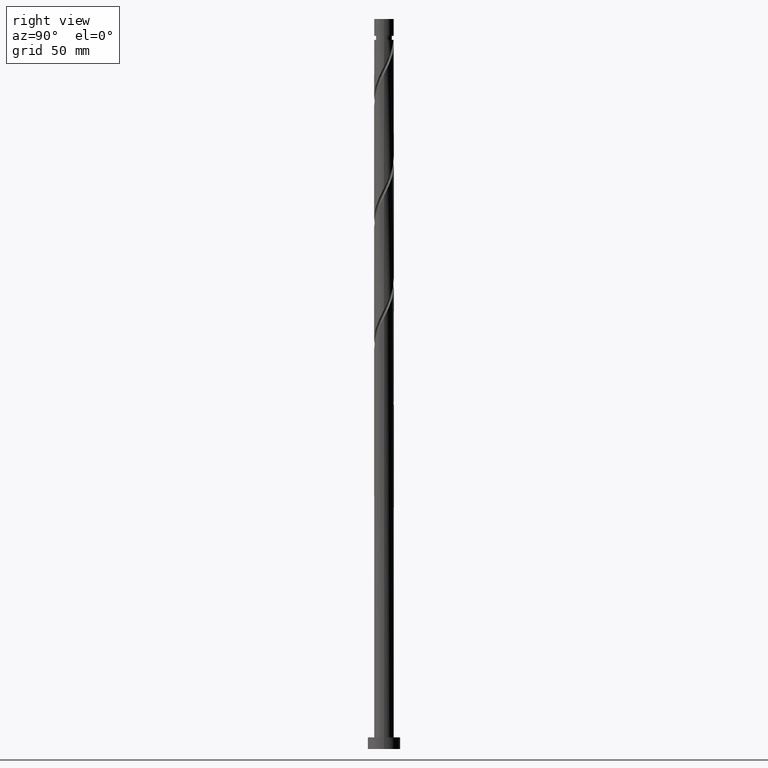
[diagram: clean part render]
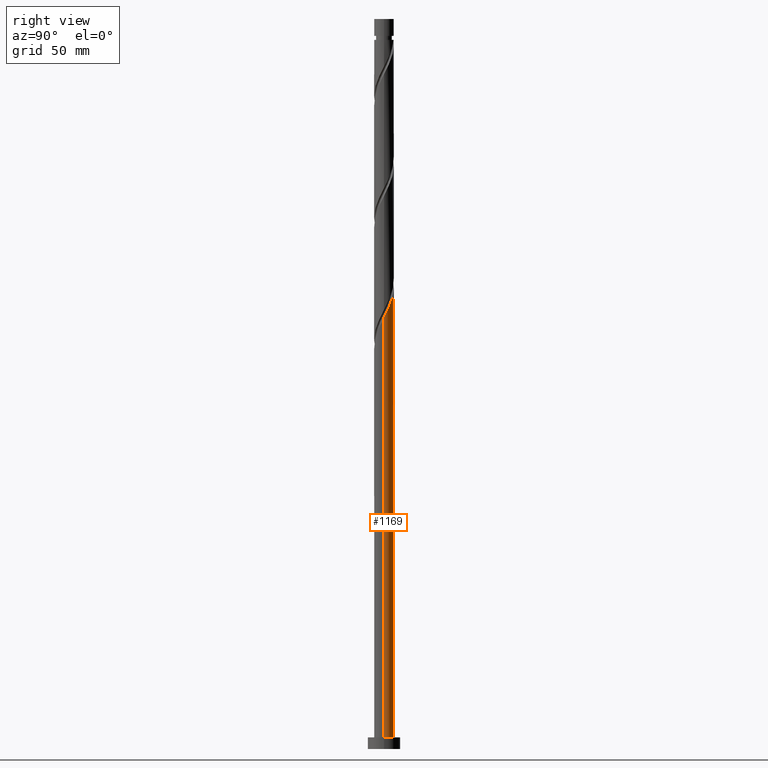
[diagram: same view with one face highlighted and labeled with its STEP entity id]
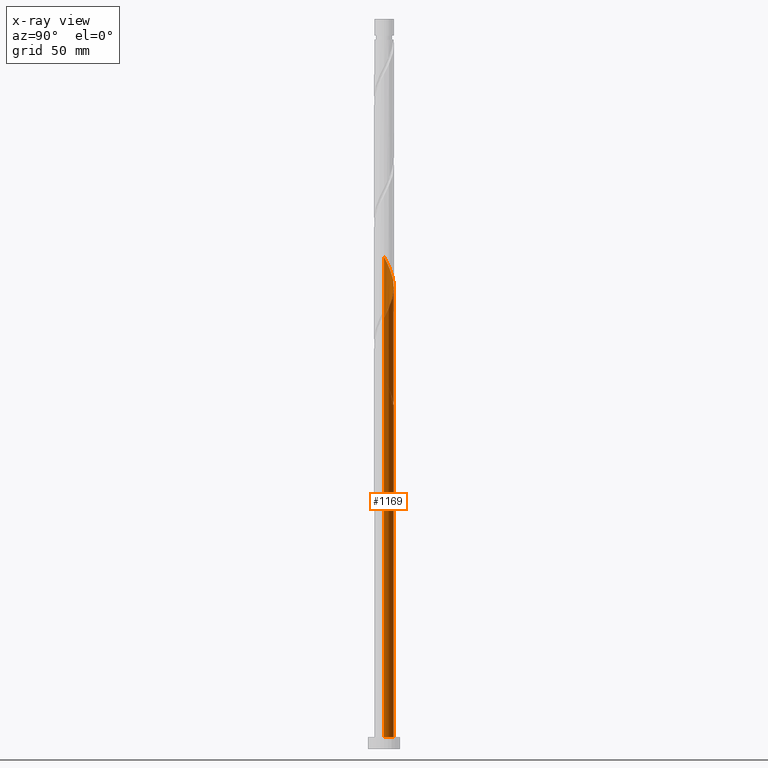
[diagram: x-ray of the same camera — body ghosted, the highlighted face saturated]
A machine part, right view. The second image highlights one B-rep face of the part: STEP entity #1169.
The next image is the same camera in x-ray: the body ghosted, the highlighted face saturated — about 0% of this face is hidden behind the body in this view.
In plain terms, the highlighted cylindrical surface (edge-blend (fillet) strip) has radius 4.25 mm, axis along (-0, -0, -1).
Its self-contained STEP definition (entity closure, byte-faithful):
#58 = ORIENTED_EDGE ( 'NONE', *, *, #790, .F. ) ;
#64 = CARTESIAN_POINT ( 'NONE',  ( 3.385582795664786815, 2.569110572493653599, 191.6187838819314493 ) ) ;
#71 = DIRECTION ( 'NONE',  ( -0.000000000000000000, -0.000000000000000000, -1.000000000000000000 ) ) ;
#73 = CARTESIAN_POINT ( 'NONE',  ( -3.565547165210049663, 2.361923010402215528, 207.5562838819315061 ) ) ;
#83 = CARTESIAN_POINT ( 'NONE',  ( 3.675052036796103483, 2.187647005630865671, 190.6812838819315630 ) ) ;
#92 = CARTESIAN_POINT ( 'NONE',  ( 1.045140974355611485, 4.119487873962377478, 197.2437838819314777 ) ) ;
#102 = CARTESIAN_POINT ( 'NONE',  ( -2.950574139356442860, 3.096113554533469259, 205.6812838819315346 ) ) ;
#117 = CARTESIAN_POINT ( 'NONE',  ( -4.237246980153090981, 0.5809861647134119123, 158.8062838819315061 ) ) ;
#118 =( BOUNDED_CURVE ( )  B_SPLINE_CURVE ( 2, ( #671, #1400, #680, #1409, #836, #83, #64, #985, #406, #1730, #525, #1097, #92, #826, #1551, #377, #1579, #367, #1422, #1275, #1430, #102, #548, #73, #662, #515, #727, #718, #432, #1442, #1748 ),
 .UNSPECIFIED., .F., .T. ) 
 B_SPLINE_CURVE_WITH_KNOTS ( ( 3, 2, 2, 2, 2, 2, 2, 2, 2, 2, 2, 2, 2, 2, 2, 3 ),
 ( 0.1795303401299219725, 0.1875000000000000000, 0.1964285714285713969, 0.2053571428571429047, 0.2142857142857143016, 0.2232142857142856984, 0.2321428571428570953, 0.2410714285714286031, 0.2500000000000000000, 0.2589285714285713969, 0.2678571428571429047, 0.2767857142857143016, 0.2857142857142856984, 0.2946428571428570953, 0.3035714285714286031, 0.3045303401299225277 ),
 .UNSPECIFIED. ) 
 CURVE ( )  GEOMETRIC_REPRESENTATION_ITEM ( )  RATIONAL_B_SPLINE_CURVE ( ( 0.9079949616362108511, 0.9039886423360736778, 0.9090909090909405910, 0.9033747362666154634, 0.9090909090909405910, 0.9033747362666154634, 0.9090909090909405910, 0.9033747362666154634, 0.9090909090909405910, 0.9033747362666154634, 0.9090909090909405910, 0.9033747362666154634, 0.9090909090909405910, 0.9033747362666154634, 0.9090909090909405910, 0.9033747362666154634, 0.9090909090909405910, 0.9033747362666154634, 0.9090909090909405910, 0.9033747362666154634, 0.9090909090909405910, 0.9033747362666154634, 0.9090909090909405910, 0.9033747362666154634, 0.9090909090909405910, 0.9033747362666154634, 0.9090909090909405910, 0.9033747362666154634, 0.9090909090909405910, 0.9084770030214821546, 0.9079949616362102960 ) ) 
 REPRESENTATION_ITEM ( '' )  );
#123 = CARTESIAN_POINT ( 'NONE',  ( -1.509295783997806506, 4.001728767771656869, 153.1812838819315061 ) ) ;
#132 = DIRECTION ( 'NONE',  ( 0.000000000000000000, 0.000000000000000000, 1.000000000000000000 ) ) ;
#156 = ORIENTED_EDGE ( 'NONE', *, *, #1770, .T. ) ;
#169 = DIRECTION ( 'NONE',  ( 1.000000000000000000, 0.000000000000000000, 0.000000000000000000 ) ) ;
#225 = EDGE_CURVE ( 'NONE', #504, #1652, #1700, .T. ) ;
#228 = CARTESIAN_POINT ( 'NONE',  ( -3.258060652283245151, 2.729018282467841949, 154.1187838819314777 ) ) ;
#234 = DIRECTION ( 'NONE',  ( -0.000000000000000000, -0.000000000000000000, -1.000000000000000000 ) ) ;
#236 = CARTESIAN_POINT ( 'NONE',  ( -4.250000000000007105, 0.05113981295718089681, 159.8439041158002851 ) ) ;
#254 = CARTESIAN_POINT ( 'NONE',  ( 0.8457393215406304732, 4.164999999999997371, 148.4937838819314777 ) ) ;
#256 = CARTESIAN_POINT ( 'NONE',  ( -4.250000000000007105, -1.308244049161757699E-14, 212.4442668040255171 ) ) ;
#260 = CARTESIAN_POINT ( 'NONE',  ( -4.250000000000000000, 0.000000000000000000, 5.000000000000000000 ) ) ;
#262 = CARTESIAN_POINT ( 'NONE',  ( -4.119487873962377478, 1.045140974355610819, 157.8687838819314777 ) ) ;
#268 = CARTESIAN_POINT ( 'NONE',  ( -3.872380050524492301, 1.751334560927727102, 159.7437838819315061 ) ) ;
#279 = CARTESIAN_POINT ( 'NONE',  ( 0.000000000000000000, 0.000000000000000000, 315.0000000000000000 ) ) ;
#284 = CARTESIAN_POINT ( 'NONE',  ( -3.675052036796095045, 2.187647005630862118, 158.8062838819314777 ) ) ;
#296 = AXIS2_PLACEMENT_3D ( 'NONE', #895, #1010, #1159 ) ;
#300 = DIRECTION ( 'NONE',  ( -0.000000000000000000, -0.000000000000000000, -1.000000000000000000 ) ) ;
#324 = VERTEX_POINT ( 'NONE', #256 ) ;
#365 = VERTEX_POINT ( 'NONE', #983 ) ;
#367 = CARTESIAN_POINT ( 'NONE',  ( -1.315022116224593418, 4.069708064252899327, 201.9312838819314493 ) ) ;
#377 = CARTESIAN_POINT ( 'NONE',  ( -0.3764565268566660294, 4.260291935747114955, 200.0562838819315346 ) ) ;
#406 = CARTESIAN_POINT ( 'NONE',  ( 2.729018282467842393, 3.258060652283245151, 193.4937838819315061 ) ) ;
#427 = CARTESIAN_POINT ( 'NONE',  ( 0.3764565268566672507, 4.260291935747106074, 149.4312838819314777 ) ) ;
#429 = ORIENTED_EDGE ( 'NONE', *, *, #1914, .F. ) ;
#432 = CARTESIAN_POINT ( 'NONE',  ( -4.248769457950102968, 0.1022648189283724418, 212.2437838819315061 ) ) ;
#444 = CARTESIAN_POINT ( 'NONE',  ( -1.045140974355608154, 4.119487873962370372, 152.2437838819315061 ) ) ;
#504 = VERTEX_POINT ( 'NONE', #746 ) ;
#515 = CARTESIAN_POINT ( 'NONE',  ( -4.001728767771663087, 1.509295783997810059, 209.4312838819315346 ) ) ;
#522 = CARTESIAN_POINT ( 'NONE',  ( -1.751334560927729544, 3.872380050524500295, 150.3687838819314777 ) ) ;
#525 = CARTESIAN_POINT ( 'NONE',  ( 1.935609397200013237, 3.783637966490855931, 195.3687838819315061 ) ) ;
#530 = DIRECTION ( 'NONE',  ( -0.000000000000000000, -0.000000000000000000, -1.000000000000000000 ) ) ;
#543 = CARTESIAN_POINT ( 'NONE',  ( -4.001728767771663087, 1.509295783997810059, 156.9312838819315061 ) ) ;
#548 = CARTESIAN_POINT ( 'NONE',  ( -3.258060652283245151, 2.729018282467841949, 206.6187838819315061 ) ) ;
#562 = ORIENTED_EDGE ( 'NONE', *, *, #1832, .F. ) ;
#608 = VECTOR ( 'NONE', #530, 1000.000000000000000 ) ;
#662 = CARTESIAN_POINT ( 'NONE',  ( -3.783637966490855931, 1.935609397200012571, 208.4937838819315061 ) ) ;
#668 = CARTESIAN_POINT ( 'NONE',  ( -3.783637966490855931, 1.935609397200012571, 155.9937838819314777 ) ) ;
#671 = CARTESIAN_POINT ( 'NONE',  ( 4.250000000000006217, 6.194196011433306111E-16, 186.1942668040253750 ) ) ;
#680 = CARTESIAN_POINT ( 'NONE',  ( 4.165000000000006253, 0.8457393215406295850, 187.8687838819315061 ) ) ;
#703 = CARTESIAN_POINT ( 'NONE',  ( -1.935609397200007686, 3.783637966490849713, 154.1187838819314493 ) ) ;
#718 = CARTESIAN_POINT ( 'NONE',  ( -4.237246980153090981, 0.5809861647134119123, 211.3062838819315914 ) ) ;
#727 = CARTESIAN_POINT ( 'NONE',  ( -4.119487873962377478, 1.045140974355610819, 210.3687838819314777 ) ) ;
#744 = DIRECTION ( 'NONE',  ( -1.000000000000000000, 0.000000000000000000, 0.000000000000000000 ) ) ;
#746 = CARTESIAN_POINT ( 'NONE',  ( 4.250000000000006217, 6.194196011433306111E-16, 186.1942668040253750 ) ) ;
#790 = EDGE_CURVE ( 'NONE', #1852, #1085, #986, .T. ) ;
#819 = LINE ( 'NONE', #1871, #608 ) ;
#826 = CARTESIAN_POINT ( 'NONE',  ( 0.5809861647134128004, 4.237246980153090981, 198.1812838819315061 ) ) ;
#836 = CARTESIAN_POINT ( 'NONE',  ( 3.872380050524500295, 1.751334560927728878, 189.7437838819314777 ) ) ;
#859 = CARTESIAN_POINT ( 'NONE',  ( -2.361923010402210199, 3.565547165210043445, 155.0562838819314777 ) ) ;
#868 = CARTESIAN_POINT ( 'NONE',  ( -4.249999999999999112, -9.365922884757672994E-15, 163.2933009598375520 ) ) ;
#877 = CARTESIAN_POINT ( 'NONE',  ( 0.8457393215406304732, 4.164999999999997371, 148.4937838819314777 ) ) ;
#895 = CARTESIAN_POINT ( 'NONE',  ( 0.000000000000000000, 0.000000000000000000, 148.4937838819314777 ) ) ;
#913 = AXIS2_PLACEMENT_3D ( 'NONE', #1046, #132, #169 ) ;
#968 = CARTESIAN_POINT ( 'NONE',  ( -4.250000000000000000, 0.000000000000000000, 315.0000000000000000 ) ) ;
#983 = CARTESIAN_POINT ( 'NONE',  ( -4.249999999999999112, -9.365922884757672994E-15, 163.2933009598375520 ) ) ;
#985 = CARTESIAN_POINT ( 'NONE',  ( 3.096113554533469703, 2.950574139356442416, 192.5562838819314777 ) ) ;
#986 =( BOUNDED_CURVE ( )  B_SPLINE_CURVE ( 2, ( #1449, #1114, #522, #1439, #1427, #1135, #228, #1718, #668, #543, #262, #117, #1293, #236, #1736 ),
 .UNSPECIFIED., .F., .T. ) 
 B_SPLINE_CURVE_WITH_KNOTS ( ( 3, 2, 2, 2, 2, 2, 2, 3 ),
 ( 0.000000000000000000, 0.008928571428571396851, 0.01785714285714290472, 0.02678571428571430157, 0.03571428571428569843, 0.04464285714285709528, 0.05357142857142860315, 0.05453034012992166030 ),
 .UNSPECIFIED. ) 
 CURVE ( )  GEOMETRIC_REPRESENTATION_ITEM ( )  RATIONAL_B_SPLINE_CURVE ( ( 0.9090909090909405910, 0.9033747362666154634, 0.9090909090909405910, 0.9033747362666154634, 0.9090909090909405910, 0.9033747362666154634, 0.9090909090909405910, 0.9033747362666154634, 0.9090909090909405910, 0.9033747362666154634, 0.9090909090909405910, 0.9033747362666154634, 0.9090909090909405910, 0.9084770030214825987, 0.9079949616362110731 ) ) 
 REPRESENTATION_ITEM ( '' )  );
#992 = EDGE_LOOP ( 'NONE', ( #429, #1630, #1077, #1827, #58, #156, #562, #1111 ) ) ;
#1010 = DIRECTION ( 'NONE',  ( 0.000000000000000000, -0.000000000000000000, -1.000000000000000000 ) ) ;
#1028 = CARTESIAN_POINT ( 'NONE',  ( -0.1022648189283712067, 4.248769457950094974, 150.3687838819314777 ) ) ;
#1038 = FACE_OUTER_BOUND ( 'NONE', #992, .T. ) ;
#1046 = CARTESIAN_POINT ( 'NONE',  ( 0.000000000000000000, 0.000000000000000000, 5.000000000000000000 ) ) ;
#1050 = EDGE_CURVE ( 'NONE', #1652, #1587, #1258, .T. ) ;
#1077 = ORIENTED_EDGE ( 'NONE', *, *, #1050, .T. ) ;
#1085 = VERTEX_POINT ( 'NONE', #1332 ) ;
#1097 = CARTESIAN_POINT ( 'NONE',  ( 1.509295783997810947, 4.001728767771663087, 196.3062838819315061 ) ) ;
#1111 = ORIENTED_EDGE ( 'NONE', *, *, #1747, .F. ) ;
#1114 = CARTESIAN_POINT ( 'NONE',  ( -1.315022116224593418, 4.069708064252899327, 149.4312838819315630 ) ) ;
#1134 = CIRCLE ( 'NONE', #296, 4.250000000000000000 ) ;
#1135 = CARTESIAN_POINT ( 'NONE',  ( -2.950574139356442860, 3.096113554533469259, 153.1812838819315346 ) ) ;
#1159 = DIRECTION ( 'NONE',  ( -1.000000000000000000, 0.000000000000000000, 0.000000000000000000 ) ) ;
#1169 = ADVANCED_FACE ( 'NONE', ( #1038 ), #1639, .T. ) ;
#1190 = CARTESIAN_POINT ( 'NONE',  ( -0.5809861647134095808, 4.237246980153082099, 151.3062838819315061 ) ) ;
#1258 = CIRCLE ( 'NONE', #913, 4.250000000000000000 ) ;
#1275 = CARTESIAN_POINT ( 'NONE',  ( -2.187647005630866115, 3.675052036796103483, 203.8062838819315630 ) ) ;
#1290 = CARTESIAN_POINT ( 'NONE',  ( 4.250000000000000000, 5.204748896376250699E-16, 5.000000000000000000 ) ) ;
#1293 = CARTESIAN_POINT ( 'NONE',  ( -4.248769457950102968, 0.1022648189283724418, 159.7437838819315061 ) ) ;
#1318 =( BOUNDED_CURVE ( )  B_SPLINE_CURVE ( 2, ( #868, #1455, #1615, #1635, #268, #284, #1751, #1606, #1329, #859, #703, #123, #444, #1190, #1028, #427, #877 ),
 .UNSPECIFIED., .F., .T. ) 
 B_SPLINE_CURVE_WITH_KNOTS ( ( 3, 2, 2, 2, 2, 2, 2, 2, 3 ),
 ( 0.9295303401299221946, 0.9375000000000000000, 0.9464285714285713969, 0.9553571428571429047, 0.9642857142857143016, 0.9732142857142856984, 0.9821428571428570953, 0.9910714285714286031, 1.000000000000000000 ),
 .UNSPECIFIED. ) 
 CURVE ( )  GEOMETRIC_REPRESENTATION_ITEM ( )  RATIONAL_B_SPLINE_CURVE ( ( 0.9079949616362024134, 0.9039886423360657952, 0.9090909090909324863, 0.9033747362666074698, 0.9090909090909324863, 0.9033747362666074698, 0.9090909090909324863, 0.9033747362666074698, 0.9090909090909324863, 0.9033747362666074698, 0.9090909090909324863, 0.9033747362666074698, 0.9090909090909324863, 0.9033747362666074698, 0.9090909090909324863, 0.9033747362666074698, 0.9090909090909324863 ) ) 
 REPRESENTATION_ITEM ( '' )  );
#1329 = CARTESIAN_POINT ( 'NONE',  ( -2.729018282467836620, 3.258060652283240710, 155.9937838819314777 ) ) ;
#1332 = CARTESIAN_POINT ( 'NONE',  ( -4.250000000000007105, 1.061968786056577498E-14, 159.9442668040253750 ) ) ;
#1364 = CARTESIAN_POINT ( 'NONE',  ( 4.250000000000000000, 5.204748896376250699E-16, 315.0000000000000000 ) ) ;
#1400 = CARTESIAN_POINT ( 'NONE',  ( 4.250000000000007994, 0.4271410714851609502, 187.0325378829890042 ) ) ;
#1409 = CARTESIAN_POINT ( 'NONE',  ( 4.069708064252899327, 1.315022116224592752, 188.8062838819314777 ) ) ;
#1411 = AXIS2_PLACEMENT_3D ( 'NONE', #279, #300, #744 ) ;
#1422 = CARTESIAN_POINT ( 'NONE',  ( -1.751334560927729544, 3.872380050524500295, 202.8687838819314493 ) ) ;
#1427 = CARTESIAN_POINT ( 'NONE',  ( -2.569110572493654487, 3.385582795664785927, 152.2437838819314777 ) ) ;
#1430 = CARTESIAN_POINT ( 'NONE',  ( -2.569110572493654487, 3.385582795664785927, 204.7437838819314777 ) ) ;
#1439 = CARTESIAN_POINT ( 'NONE',  ( -2.187647005630866115, 3.675052036796103483, 151.3062838819315061 ) ) ;
#1442 = CARTESIAN_POINT ( 'NONE',  ( -4.250000000000007105, 0.05113981295713461439, 212.3439041158003988 ) ) ;
#1449 = CARTESIAN_POINT ( 'NONE',  ( -0.8457393215406292519, 4.165000000000006253, 148.4937838819314777 ) ) ;
#1455 = CARTESIAN_POINT ( 'NONE',  ( -4.249999999999996447, 0.4271410714851737178, 162.4550298808738944 ) ) ;
#1475 = VECTOR ( 'NONE', #234, 1000.000000000000000 ) ;
#1551 = CARTESIAN_POINT ( 'NONE',  ( 0.1022648189283734271, 4.248769457950102968, 199.1187838819314777 ) ) ;
#1554 = LINE ( 'NONE', #968, #1475 ) ;
#1579 = CARTESIAN_POINT ( 'NONE',  ( -0.8457393215406292519, 4.165000000000006253, 200.9937838819314777 ) ) ;
#1587 = VERTEX_POINT ( 'NONE', #260 ) ;
#1594 = VERTEX_POINT ( 'NONE', #254 ) ;
#1601 = VECTOR ( 'NONE', #71, 1000.000000000000000 ) ;
#1606 = CARTESIAN_POINT ( 'NONE',  ( -3.096113554533461265, 2.950574139356436643, 156.9312838819315346 ) ) ;
#1615 = CARTESIAN_POINT ( 'NONE',  ( -4.164999999999997371, 0.8457393215406295850, 161.6187838819314777 ) ) ;
#1622 = CARTESIAN_POINT ( 'NONE',  ( -0.8457393215406291409, 4.165000000000006253, 148.4937838819314777 ) ) ;
#1630 = ORIENTED_EDGE ( 'NONE', *, *, #225, .T. ) ;
#1635 = CARTESIAN_POINT ( 'NONE',  ( -4.069708064252891333, 1.315022116224591642, 160.6812838819315346 ) ) ;
#1639 = CYLINDRICAL_SURFACE ( 'NONE', #1411, 4.250000000000000000 ) ;
#1652 = VERTEX_POINT ( 'NONE', #1290 ) ;
#1700 = LINE ( 'NONE', #1364, #1601 ) ;
#1718 = CARTESIAN_POINT ( 'NONE',  ( -3.565547165210049663, 2.361923010402215528, 155.0562838819314493 ) ) ;
#1724 = EDGE_CURVE ( 'NONE', #1085, #1587, #1554, .T. ) ;
#1730 = CARTESIAN_POINT ( 'NONE',  ( 2.361923010402216416, 3.565547165210048774, 194.4312838819314777 ) ) ;
#1736 = CARTESIAN_POINT ( 'NONE',  ( -4.250000000000007105, 1.061968786056577498E-14, 159.9442668040253750 ) ) ;
#1747 = EDGE_CURVE ( 'NONE', #324, #365, #819, .T. ) ;
#1748 = CARTESIAN_POINT ( 'NONE',  ( -4.250000000000007105, -1.308244049161757699E-14, 212.4442668040255171 ) ) ;
#1751 = CARTESIAN_POINT ( 'NONE',  ( -3.385582795664779265, 2.569110572493650047, 157.8687838819314493 ) ) ;
#1770 = EDGE_CURVE ( 'NONE', #1852, #1594, #1134, .T. ) ;
#1827 = ORIENTED_EDGE ( 'NONE', *, *, #1724, .F. ) ;
#1832 = EDGE_CURVE ( 'NONE', #365, #1594, #1318, .T. ) ;
#1852 = VERTEX_POINT ( 'NONE', #1622 ) ;
#1871 = CARTESIAN_POINT ( 'NONE',  ( -4.250000000000000000, 0.000000000000000000, 315.0000000000000000 ) ) ;
#1914 = EDGE_CURVE ( 'NONE', #504, #324, #118, .T. ) ;